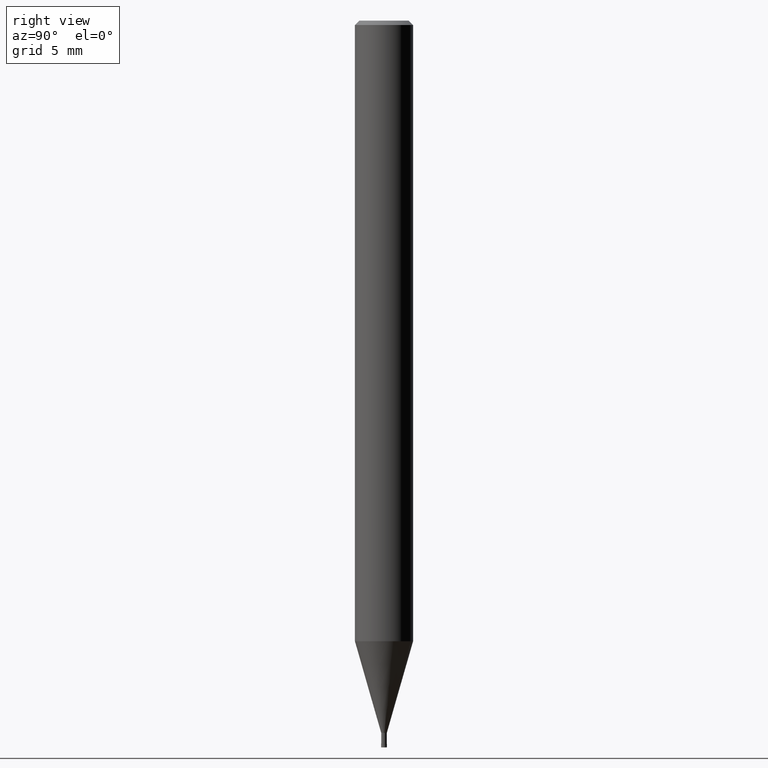
[diagram: clean part render]
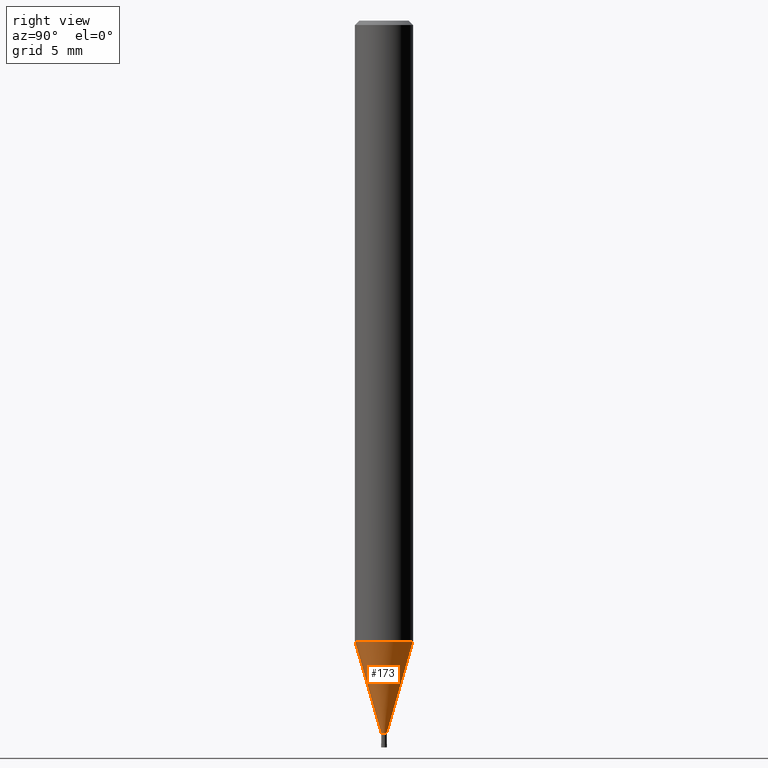
[diagram: same view with one face highlighted and labeled with its STEP entity id]
A machine part, right view. The second image highlights one B-rep face of the part: STEP entity #173.
In plain terms, the highlighted conical surface has half-angle 15.999 deg.
Its self-contained STEP definition (entity closure, byte-faithful):
#143=EDGE_CURVE('',#327,#263,#378,.T.);
#173=ADVANCED_FACE('',(#414),#415,.T.);
#227=VERTEX_POINT('',#475);
#263=VERTEX_POINT('',#516);
#275=EDGE_CURVE('',#227,#327,#529,.T.);
#283=EDGE_CURVE('',#227,#297,#537,.T.);
#297=VERTEX_POINT('',#555);
#323=EDGE_CURVE('',#263,#297,#583,.T.);
#327=VERTEX_POINT('',#587);
#378=CIRCLE('',#637,0.19245);
#414=FACE_OUTER_BOUND('',#680,.T.);
#415=CONICAL_SURFACE('',#681,1.0962,0.279231732547063);
#475=CARTESIAN_POINT('',(0.0,1.99995,-42.686));
#516=CARTESIAN_POINT('',(2.35675492793117E-017,-0.19245,-48.99));
#529=LINE('',#825,#826);
#537=CIRCLE('',#838,1.99995);
#555=CARTESIAN_POINT('',(2.44915147732706E-016,-1.99995,-42.686));
#583=LINE('',#895,#896);
#587=CARTESIAN_POINT('',(0.0,0.19245,-48.99));
#637=AXIS2_PLACEMENT_3D('',#948,#949,#950);
#680=EDGE_LOOP('',(#999,#1000,#1001,#1002));
#681=AXIS2_PLACEMENT_3D('',#1003,#1004,#1005);
#825=CARTESIAN_POINT('',(-1.34241348506009E-016,1.0962,-45.838));
#826=VECTOR('',#1143,1.0);
#838=AXIS2_PLACEMENT_3D('',#1148,#1149,#1150);
#895=CARTESIAN_POINT('',(1.34241348506009E-016,-1.0962,-45.838));
#896=VECTOR('',#1219,1.0);
#948=CARTESIAN_POINT('',(0.0,0.0,-48.99));
#949=DIRECTION('',(0.0,0.0,-1.0));
#950=DIRECTION('',(0.0,1.0,0.0));
#999=ORIENTED_EDGE('',*,*,#275,.F.);
#1000=ORIENTED_EDGE('',*,*,#283,.T.);
#1001=ORIENTED_EDGE('',*,*,#323,.F.);
#1002=ORIENTED_EDGE('',*,*,#143,.F.);
#1003=CARTESIAN_POINT('',(0.0,0.0,-45.838));
#1004=DIRECTION('',(-0.0,-0.0,1.0));
#1005=DIRECTION('',(0.0,1.0,0.0));
#1143=DIRECTION('',(3.375225981805E-017,-0.275617219465657,-0.961267469715906));
#1148=CARTESIAN_POINT('',(0.0,0.0,-42.686));
#1149=DIRECTION('',(0.0,0.0,-1.0));
#1150=DIRECTION('',(0.0,1.0,0.0));
#1219=DIRECTION('',(3.375225981805E-017,-0.275617219465657,0.961267469715906));